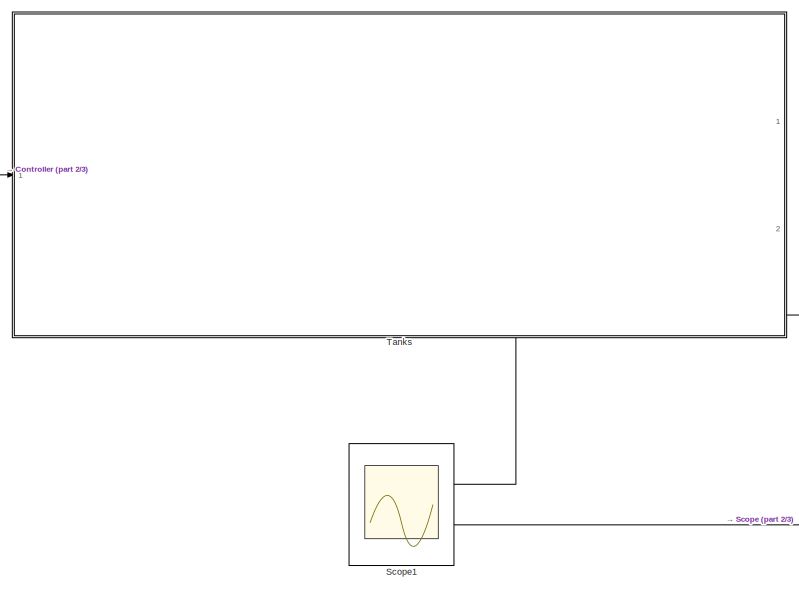
[diagram: root canvas - part 1/3, middle left region]
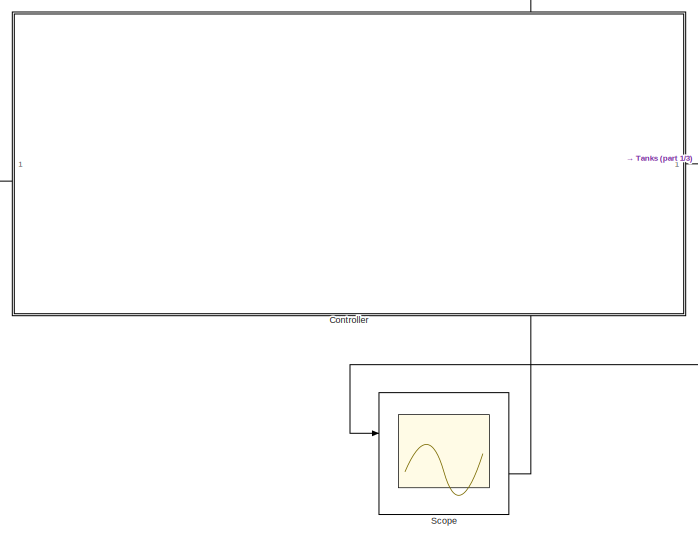
[diagram: root canvas - part 2/3, top right region]
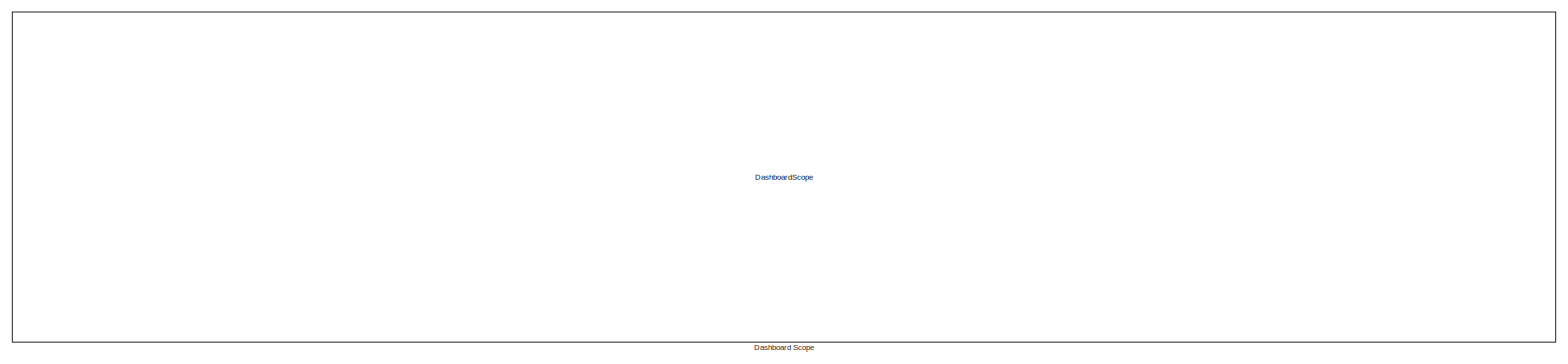
[diagram: root canvas - part 3/3, full width, bottom band]
MODEL slx_e19ee074cdfa
KIND model
CONFIG AbsTol = auto
CONFIG EnableMultiTasking = off
CONFIG FixedStep = auto
CONFIG MaxStep = auto
CONFIG MinStep = auto
CONFIG RelTol = 1e-3
CONFIG SampleTimeConstraint = Unconstrained
CONFIG Solver = VariableStepAuto
CONFIG SolverName = VariableStepAuto
CONFIG StartTime = 0.0
CONFIG StopTime = 200
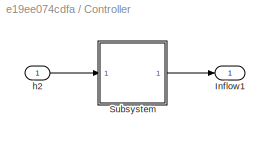
BLOCK [SubSystem] Controller
  Ports = [1, 1]
  RequestExecContextInheritance = off
BLOCK [Outport] Controller/Inflow1
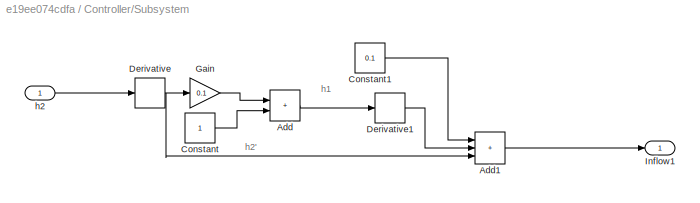
BLOCK [SubSystem] Controller/Subsystem
  Ports = [1, 1]
  RequestExecContextInheritance = off
BLOCK [Sum] Controller/Subsystem/Add
  IconShape = rectangular
  Ports = [2, 1]
BLOCK [Sum] Controller/Subsystem/Add1
  IconShape = rectangular
  Inputs = +++
  Ports = [3, 1]
BLOCK [Constant] Controller/Subsystem/Constant
BLOCK [Constant] Controller/Subsystem/Constant1
  Value = 0.1
BLOCK [Derivative] Controller/Subsystem/Derivative
BLOCK [Derivative] Controller/Subsystem/Derivative1
BLOCK [Gain] Controller/Subsystem/Gain
  Gain = 0.1
BLOCK [Outport] Controller/Subsystem/Inflow1
BLOCK [Inport] Controller/Subsystem/h2
BLOCK [Inport] Controller/h2
BLOCK [DashboardScope] Dashboard Scope
BLOCK [Scope] Scope
  Floating = off
  NumInputPorts = 2
  Ports = [2]
  ScopeSpecificationString = Simulink.scopes.TimeScopeBlockCfg('CurrentConfiguration', extmgr.ConfigurationSet(extmgr.Configuration('Core','General UI',true),extmgr.Configuration('Core','Source UI',true),extmgr.Configuration('Sources','WiredSimulink',true,'DataLoggingVariableName','ScopeData1'),extmgr.Configuration('Visuals','Time Domain',true,'SerializedDisplays',{struct('MinYLimReal','-0.1488','MaxYLimReal','1.33919','YLabe...<+1403ch>
BLOCK [Scope] Scope1
  Floating = off
  NumInputPorts = 2
  Ports = [2]
  ScopeSpecificationString = Simulink.scopes.TimeScopeBlockCfg('CurrentConfiguration', extmgr.ConfigurationSet(extmgr.Configuration('Core','General UI',true),extmgr.Configuration('Core','Source UI',true),extmgr.Configuration('Sources','WiredSimulink',true,'DataLoggingVariableName','ScopeData1'),extmgr.Configuration('Visuals','Time Domain',true,'SerializedDisplays',{struct('MinYLimReal','-0.16416','MaxYLimReal','1.4774','YLabe...<+1372ch>
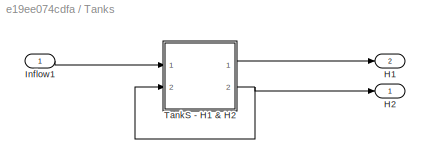
BLOCK [SubSystem] Tanks
  PortSchema = {"entries":[{"content":{"sides":[{"content":{"connectorIds":["In1"]},"type":"ConnectorPlacement.EquallySpacedRectSide","uuid":"e5306d54-3110-4a08-a7f7-5a5ae3387896"},{"content":{"connectorIds":[],"side":"RIGHT"},"type":"ConnectorPlacement.EquallySpacedRectSide","uuid":"42eaa8c0-5f21-4179-a706-71b62f07686c"},{"content":{"connectorIds":[],"side":"TOP"},"type":"ConnectorPlacement.EquallySpacedRectSid...<+393ch>
  Ports = [1, 2]
  RequestExecContextInheritance = off
BLOCK [Outport] Tanks/H1
  Port = 2
BLOCK [Outport] Tanks/H2
BLOCK [Inport] Tanks/Inflow1
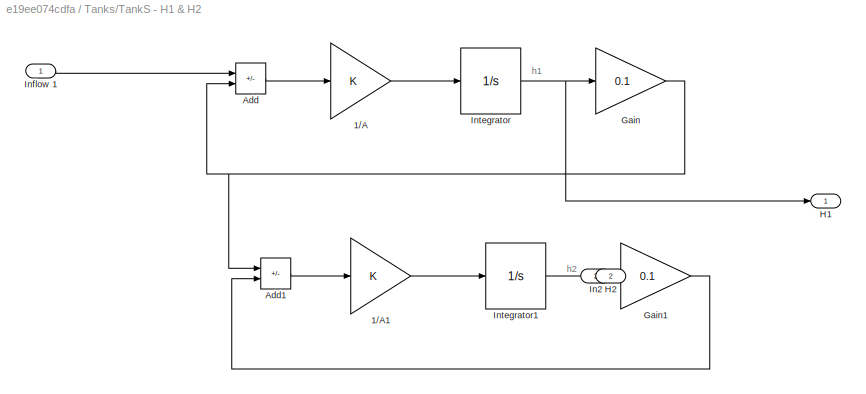
BLOCK [SubSystem] Tanks/TankS - H1 & H2
  Ports = [2, 2]
  RequestExecContextInheritance = off
BLOCK [Gain] Tanks/TankS - H1 & H2/1//A
BLOCK [Gain] Tanks/TankS - H1 & H2/1//A1
BLOCK [Sum] Tanks/TankS - H1 & H2/Add
  IconShape = rectangular
  Inputs = +-
  Ports = [2, 1]
BLOCK [Sum] Tanks/TankS - H1 & H2/Add1
  IconShape = rectangular
  Inputs = +-
  Ports = [2, 1]
BLOCK [Gain] Tanks/TankS - H1 & H2/Gain
  Gain = 0.1
BLOCK [Gain] Tanks/TankS - H1 & H2/Gain1
  Gain = 0.1
BLOCK [Outport] Tanks/TankS - H1 & H2/H1
BLOCK [Outport] Tanks/TankS - H1 & H2/H2
  Port = 2
BLOCK [Inport] Tanks/TankS - H1 & H2/In2
  Port = 2
BLOCK [Inport] Tanks/TankS - H1 & H2/Inflow 1
BLOCK [Integrator] Tanks/TankS - H1 & H2/Integrator
  LowerSaturationLimit = 0
  Ports = [1, 1]
BLOCK [Integrator] Tanks/TankS - H1 & H2/Integrator1
  LowerSaturationLimit = 0
  Ports = [1, 1]
ANNOTATION Controller/Subsystem: h1
ANNOTATION Controller/Subsystem: h2'
ANNOTATION Tanks/TankS - H1 & H2: h1
ANNOTATION Tanks/TankS - H1 & H2: h2
LINE Controller/Subsystem/Add1:1 -> Controller/Subsystem/Inflow1:1
LINE Controller/Subsystem/Add:1 -> Controller/Subsystem/Derivative1:1
LINE Controller/Subsystem/Constant1:1 -> Controller/Subsystem/Add1:1
LINE Controller/Subsystem/Constant:1 -> Controller/Subsystem/Add:2
LINE Controller/Subsystem/Derivative1:1 -> Controller/Subsystem/Add1:2
NET Controller/Subsystem/Derivative:1 -> Controller/Subsystem/Add1:3, Controller/Subsystem/Gain:1
LINE Controller/Subsystem/Gain:1 -> Controller/Subsystem/Add:1
LINE Controller/Subsystem/h2:1 -> Controller/Subsystem/Derivative:1
LINE Controller/Subsystem:1 -> Controller/Inflow1:1
LINE Controller/h2:1 -> Controller/Subsystem:1
NET Controller:1 -> Scope:1, Tanks:1
LINE Tanks/Inflow1:1 -> Tanks/TankS - H1 & H2:1
LINE Tanks/TankS - H1 & H2/1//A1:1 -> Tanks/TankS - H1 & H2/Integrator1:1
LINE Tanks/TankS - H1 & H2/1//A:1 -> Tanks/TankS - H1 & H2/Integrator:1
LINE Tanks/TankS - H1 & H2/Add1:1 -> Tanks/TankS - H1 & H2/1//A1:1
LINE Tanks/TankS - H1 & H2/Add:1 -> Tanks/TankS - H1 & H2/1//A:1
LINE Tanks/TankS - H1 & H2/Gain1:1 -> Tanks/TankS - H1 & H2/Add1:2
NET Tanks/TankS - H1 & H2/Gain:1 -> Tanks/TankS - H1 & H2/Add1:1, Tanks/TankS - H1 & H2/Add:2
LINE Tanks/TankS - H1 & H2/In2:1 -> Tanks/TankS - H1 & H2/Gain1:1
LINE Tanks/TankS - H1 & H2/Inflow 1:1 -> Tanks/TankS - H1 & H2/Add:1
LINE Tanks/TankS - H1 & H2/Integrator1:1 -> Tanks/TankS - H1 & H2/H2:1
NET Tanks/TankS - H1 & H2/Integrator:1 -> Tanks/TankS - H1 & H2/Gain:1, Tanks/TankS - H1 & H2/H1:1
LINE Tanks/TankS - H1 & H2:1 -> Tanks/H1:1
NET Tanks/TankS - H1 & H2:2 -> Tanks/H2:1, Tanks/TankS - H1 & H2:2
NET Tanks:1 -> Controller:1, Scope1:2, Scope:2
LINE Tanks:2 -> Scope1:1
note: NET lines group one-source signal fan-out (src -> all destinations, sorted); 1:1 wires keep LINE
